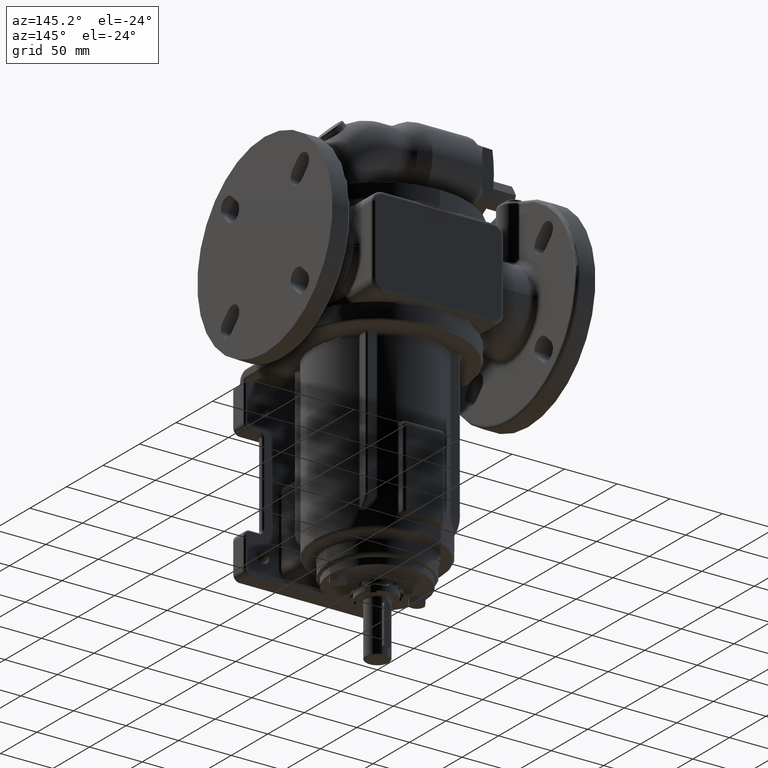
[diagram: clean part render]
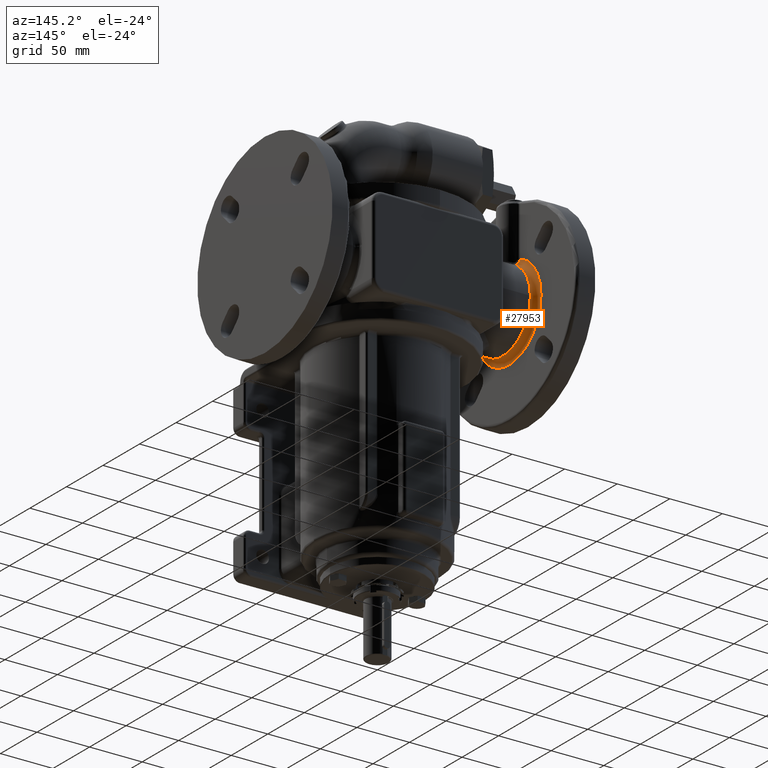
[diagram: same view with one face highlighted and labeled with its STEP entity id]
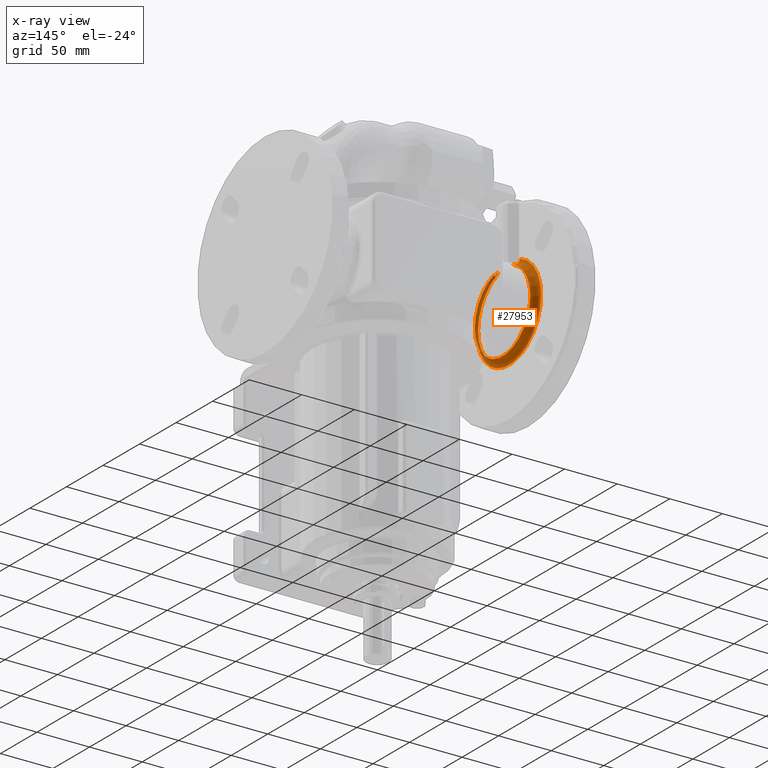
[diagram: x-ray of the same camera — body ghosted, the highlighted face saturated]
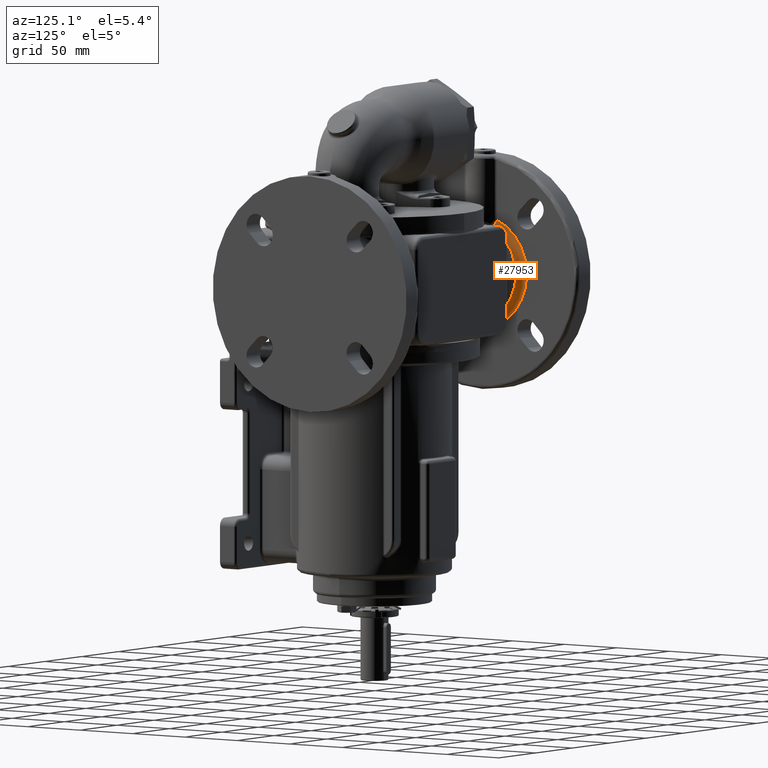
[diagram: same view with one face highlighted and labeled with its STEP entity id]
A machine part, auxiliary view. The second image highlights one B-rep face of the part: STEP entity #27953.
The next image is the same camera in x-ray: the body ghosted, the highlighted face saturated — about 17% of this face is hidden behind the body in this view.
A second angle (auxiliary view) of the same face is appended — the face is thin or edge-on in the first view.
In plain terms, the highlighted toroidal blend (fillet) surface has major radius 44 mm and minor (blend) radius 6 mm.
Its self-contained STEP definition (entity closure, byte-faithful):
#799=CARTESIAN_POINT('',(-1.01E2,2.6E1,5.E1));
#800=DIRECTION('',(1.E0,0.E0,0.E0));
#801=DIRECTION('',(0.E0,-3.272294862201E-1,9.449448996360E-1));
#802=AXIS2_PLACEMENT_3D('',#799,#800,#801);
#822=CARTESIAN_POINT('',(-1.01E2,2.6E1,5.E1));
#823=DIRECTION('',(1.E0,0.E0,0.E0));
#824=DIRECTION('',(0.E0,1.E0,0.E0));
#825=AXIS2_PLACEMENT_3D('',#822,#823,#824);
#2967=CARTESIAN_POINT('',(-1.01E2,2.6E1,5.E1));
#2968=DIRECTION('',(1.E0,0.E0,0.E0));
#2969=DIRECTION('',(0.E0,-1.E0,0.E0));
#2970=AXIS2_PLACEMENT_3D('',#2967,#2968,#2969);
#3028=CARTESIAN_POINT('',(-1.07E2,2.6E1,5.E1));
#3029=DIRECTION('',(-1.E0,0.E0,0.E0));
#3030=DIRECTION('',(0.E0,3.542831251444E-1,9.351382075597E-1));
#3031=AXIS2_PLACEMENT_3D('',#3028,#3029,#3030);
#3141=CARTESIAN_POINT('',(-1.01E2,3.843471948270E1,8.590790652917E1));
#3142=CARTESIAN_POINT('',(-1.014784252472E2,3.863306057297E1,8.583922183808E1));
#3143=CARTESIAN_POINT('',(-1.024187828475E2,3.902154697231E1,8.582289459416E1));
#3144=CARTESIAN_POINT('',(-1.037040615461E2,3.956678065232E1,8.612463070889E1));
#3145=CARTESIAN_POINT('',(-1.048265422172E2,4.007342756638E1,8.671064174760E1));
#3146=CARTESIAN_POINT('',(-1.057535498263E2,4.053862103754E1,8.754374488136E1));
#3147=CARTESIAN_POINT('',(-1.064546843666E2,4.095681355845E1,8.858845248822E1));
#3148=CARTESIAN_POINT('',(-1.068972588983E2,4.131716986078E1,8.980383753382E1));
#3149=CARTESIAN_POINT('',(-1.069999998954E2,4.150830030374E1,9.069256772140E1));
#3150=CARTESIAN_POINT('',(-1.069999999978E2,4.158845726812E1,9.114608104311E1));
#3231=CARTESIAN_POINT('',(-1.069999999986E2,1.041154273188E1,9.114608104251E1));
#3232=CARTESIAN_POINT('',(-1.069999999060E2,1.049170332246E1,9.069254968364E1));
#3233=CARTESIAN_POINT('',(-1.068972511533E2,1.068283884081E1,8.980380112612E1));
#3234=CARTESIAN_POINT('',(-1.064546706906E2,1.104319452451E1,8.858843277774E1));
#3235=CARTESIAN_POINT('',(-1.057535802692E2,1.146135984438E1,8.754379694032E1));
#3236=CARTESIAN_POINT('',(-1.048266769267E2,1.192650874514E1,8.671073310831E1));
#3237=CARTESIAN_POINT('',(-1.037041102990E2,1.243319928625E1,8.612464085692E1));
#3238=CARTESIAN_POINT('',(-1.024188204338E2,1.297843650890E1,8.582289804739E1));
#3239=CARTESIAN_POINT('',(-1.014784371751E2,1.336693586221E1,8.583922056215E1));
#3240=CARTESIAN_POINT('',(-1.009999999978E2,1.356528026909E1,8.590790643189E1));
#13283=CARTESIAN_POINT('',(-1.01E2,6.4E1,5.E1));
#13284=CARTESIAN_POINT('',(-1.01E2,3.843471947825E1,8.590790653181E1));
#13285=VERTEX_POINT('',#13283);
#13286=VERTEX_POINT('',#13284);
#13287=CARTESIAN_POINT('',(-1.01E2,-1.2E1,5.E1));
#13288=VERTEX_POINT('',#13287);
#13289=CARTESIAN_POINT('',(-1.01E2,1.356527952363E1,8.590790618617E1));
#13290=VERTEX_POINT('',#13289);
#13303=CARTESIAN_POINT('',(-1.07E2,4.158845750635E1,9.114608113263E1));
#13304=CARTESIAN_POINT('',(-1.07E2,1.041154249285E1,9.114608113232E1));
#13305=VERTEX_POINT('',#13303);
#13306=VERTEX_POINT('',#13304);
#27937=CARTESIAN_POINT('',(-1.01E2,2.6E1,5.E1));
#27938=DIRECTION('',(1.E0,0.E0,0.E0));
#27939=DIRECTION('',(0.E0,2.395345077795E-3,-9.999971311569E-1));
#27940=AXIS2_PLACEMENT_3D('',#27937,#27938,#27939);
#27941=TOROIDAL_SURFACE('',#27940,4.4E1,6.E0);
#27943=ORIENTED_EDGE('',*,*,#27942,.T.);
#27945=ORIENTED_EDGE('',*,*,#27944,.T.);
#27946=ORIENTED_EDGE('',*,*,#17710,.T.);
#27947=ORIENTED_EDGE('',*,*,#27069,.T.);
#27948=ORIENTED_EDGE('',*,*,#17716,.T.);
#27950=ORIENTED_EDGE('',*,*,#27949,.T.);
#27951=EDGE_LOOP('',(#27943,#27945,#27946,#27947,#27948,#27950));
#27952=FACE_OUTER_BOUND('',#27951,.F.);
#27953=ADVANCED_FACE('',(#27952),#27941,.F.);
#803=CIRCLE('',#802,3.8E1);
#826=CIRCLE('',#825,3.8E1);
#2971=CIRCLE('',#2970,3.8E1);
#3032=CIRCLE('',#3031,4.4E1);
#3151=B_SPLINE_CURVE_WITH_KNOTS('',3,(#3141,#3142,#3143,#3144,#3145,#3146,#3147,
#3148,#3149,#3150),.UNSPECIFIED.,.F.,.F.,(4,1,1,1,1,1,1,4),(0.E0,
1.428571428571E-1,2.857142857143E-1,4.285714285714E-1,5.714285714286E-1,
7.142857142857E-1,8.571428571429E-1,1.E0),.UNSPECIFIED.);
#3241=B_SPLINE_CURVE_WITH_KNOTS('',3,(#3231,#3232,#3233,#3234,#3235,#3236,#3237,
#3238,#3239,#3240),.UNSPECIFIED.,.F.,.F.,(4,1,1,1,1,1,1,4),(0.E0,
1.428571428571E-1,2.857142857143E-1,4.285714285714E-1,5.714285714286E-1,
7.142857142857E-1,8.571428571429E-1,1.E0),.UNSPECIFIED.);
#17710=EDGE_CURVE('',#13290,#13288,#803,.T.);
#17716=EDGE_CURVE('',#13285,#13286,#826,.T.);
#27069=EDGE_CURVE('',#13288,#13285,#2971,.T.);
#27942=EDGE_CURVE('',#13305,#13306,#3032,.T.);
#27944=EDGE_CURVE('',#13306,#13290,#3241,.T.);
#27949=EDGE_CURVE('',#13286,#13305,#3151,.T.);